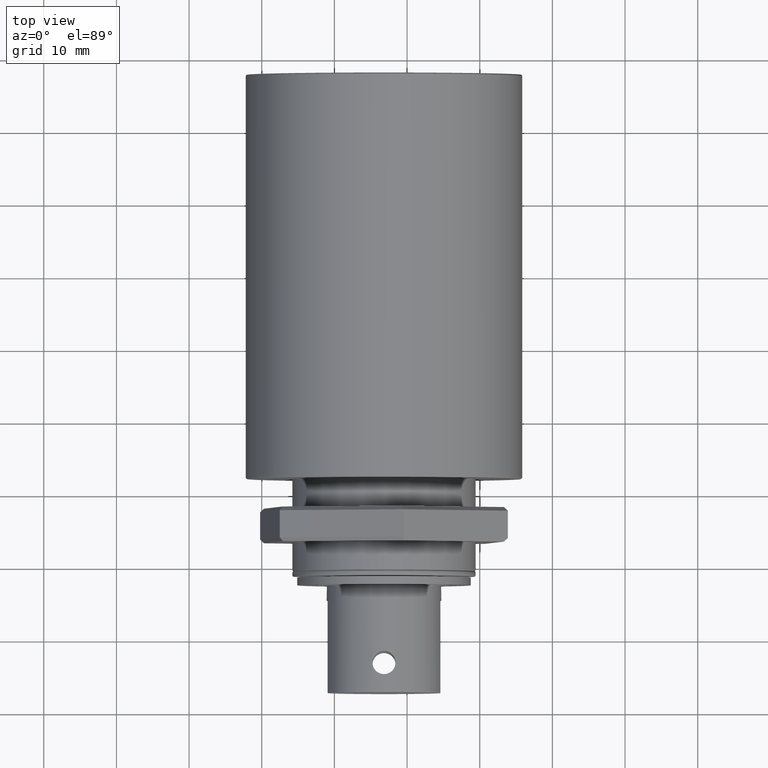
[diagram: clean part render]
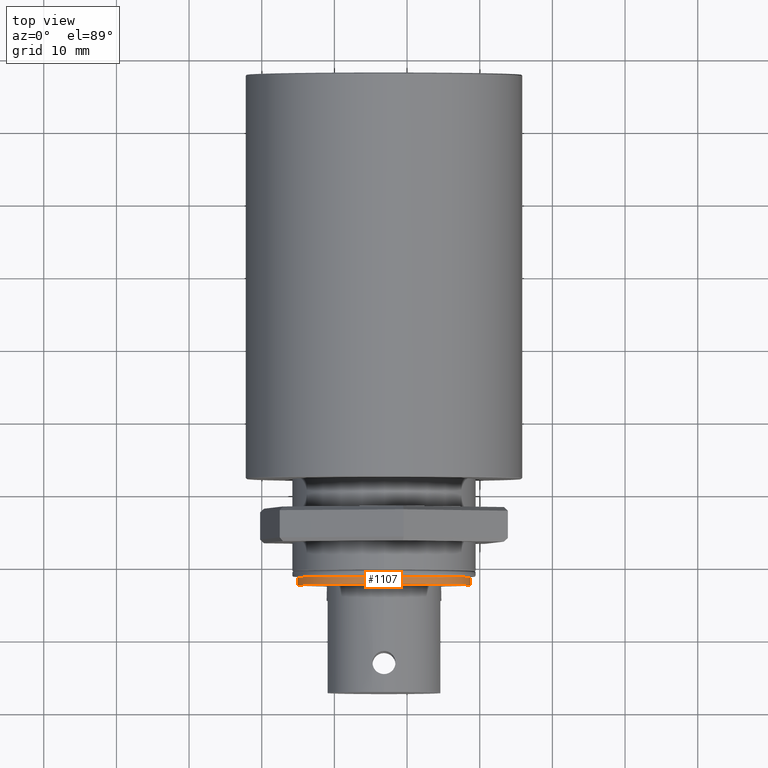
[diagram: same view with one face highlighted and labeled with its STEP entity id]
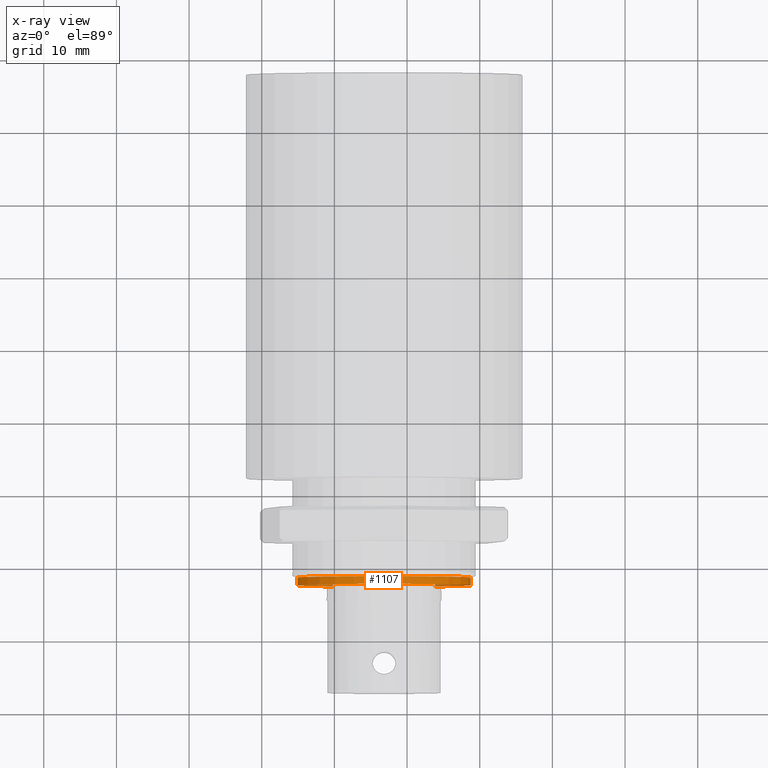
[diagram: x-ray of the same camera — body ghosted, the highlighted face saturated]
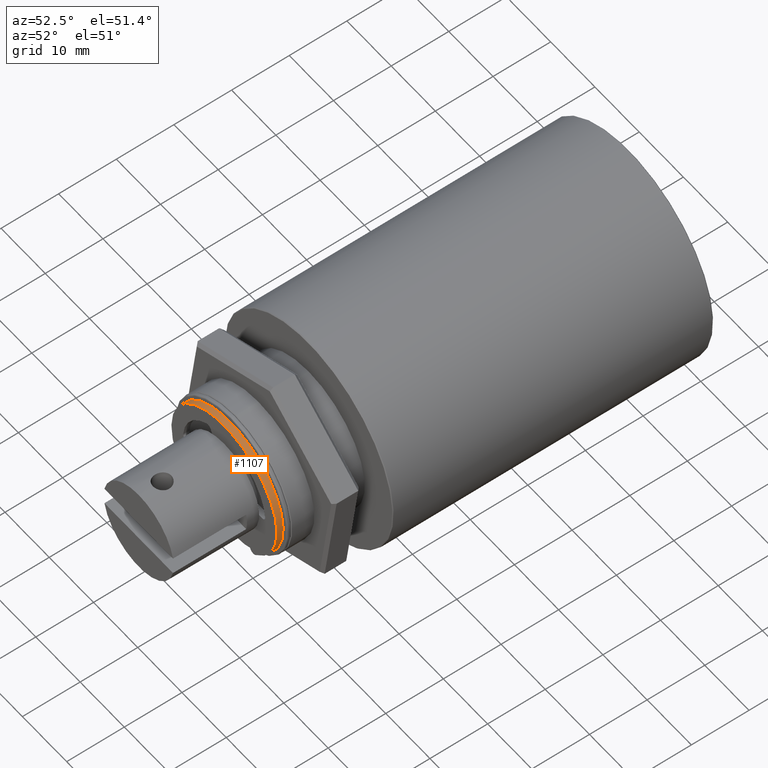
[diagram: same view with one face highlighted and labeled with its STEP entity id]
A machine part, top view. The second image highlights one B-rep face of the part: STEP entity #1107.
The next image is the same camera in x-ray: the body ghosted, the highlighted face saturated — about 3% of this face is hidden behind the body in this view.
A second angle (auxiliary view) of the same face is appended — the face is thin or edge-on in the first view.
In plain terms, the highlighted cylindrical surface (partial cylindrical patch) has radius 11.938 mm, axis along (0, 1, 0).
Its self-contained STEP definition (entity closure, byte-faithful):
#86=CIRCLE('',#1259,0.011938);
#95=CIRCLE('',#1269,0.011938);
#130=CYLINDRICAL_SURFACE('',#1287,0.011938);
#375=ORIENTED_EDGE('',*,*,#512,.F.);
#376=ORIENTED_EDGE('',*,*,#532,.T.);
#377=ORIENTED_EDGE('',*,*,#496,.T.);
#378=ORIENTED_EDGE('',*,*,#533,.T.);
#496=EDGE_CURVE('',#611,#612,#86,.T.);
#512=EDGE_CURVE('',#623,#624,#95,.T.);
#532=EDGE_CURVE('',#623,#611,#721,.T.);
#533=EDGE_CURVE('',#612,#624,#722,.T.);
#611=VERTEX_POINT('',#1882);
#612=VERTEX_POINT('',#1883);
#623=VERTEX_POINT('',#1910);
#624=VERTEX_POINT('',#1912);
#721=LINE('',#1950,#801);
#722=LINE('',#1951,#802);
#801=VECTOR('',#1603,1.);
#802=VECTOR('',#1604,1.);
#880=EDGE_LOOP('',(#375,#376,#377,#378));
#983=FACE_BOUND('',#880,.T.);
#1107=ADVANCED_FACE('',(#983),#130,.T.);
#1259=AXIS2_PLACEMENT_3D('',#1881,#1525,#1526);
#1269=AXIS2_PLACEMENT_3D('',#1911,#1552,#1553);
#1287=AXIS2_PLACEMENT_3D('',#1949,#1601,#1602);
#1525=DIRECTION('',(1.,0.,0.));
#1526=DIRECTION('',(0.,0.,-1.));
#1552=DIRECTION('',(1.,0.,0.));
#1553=DIRECTION('',(0.,0.,-1.));
#1601=DIRECTION('',(-1.,0.,0.));
#1602=DIRECTION('',(0.,0.,1.));
#1603=DIRECTION('',(-1.,0.,0.));
#1604=DIRECTION('',(1.,0.,0.));
#1881=CARTESIAN_POINT('',(-0.0005334,0.,0.));
#1882=CARTESIAN_POINT('',(-0.0005334,-0.00702613245224265,0.00965138885153545));
#1883=CARTESIAN_POINT('',(-0.0005334,0.00702613245224264,0.00965138885153545));
#1910=CARTESIAN_POINT('',(0.0005334,-0.00702613245224265,0.00965138885153545));
#1911=CARTESIAN_POINT('',(0.0005334,0.,0.));
#1912=CARTESIAN_POINT('',(0.0005334,0.00702613245224264,0.00965138885153545));
#1949=CARTESIAN_POINT('',(0.0005334,0.,0.));
#1950=CARTESIAN_POINT('',(0.0005334,-0.00702613245224264,0.00965138885153545));
#1951=CARTESIAN_POINT('',(0.0005334,0.00702613245224264,0.00965138885153545));